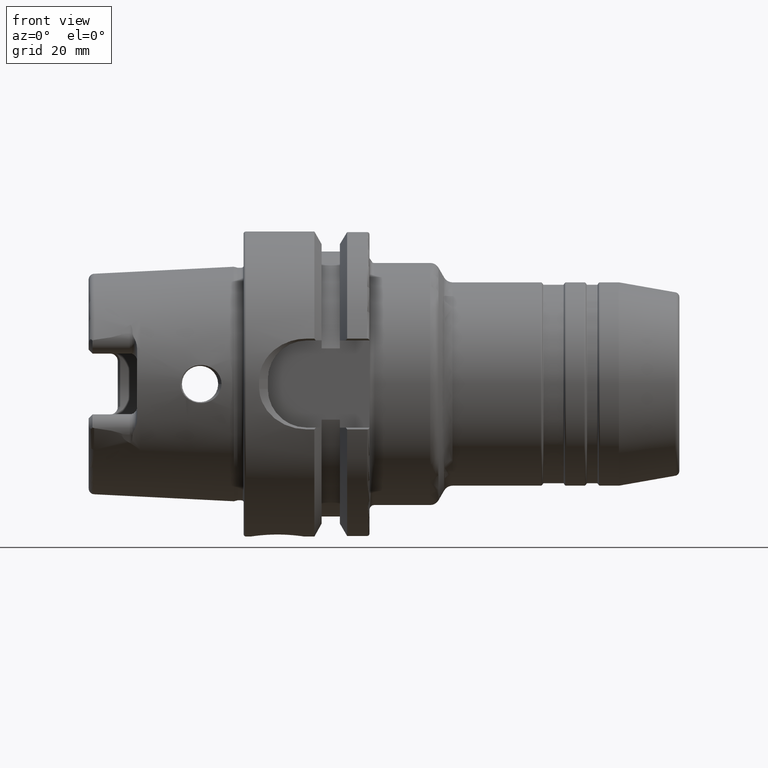
[diagram: clean part render]
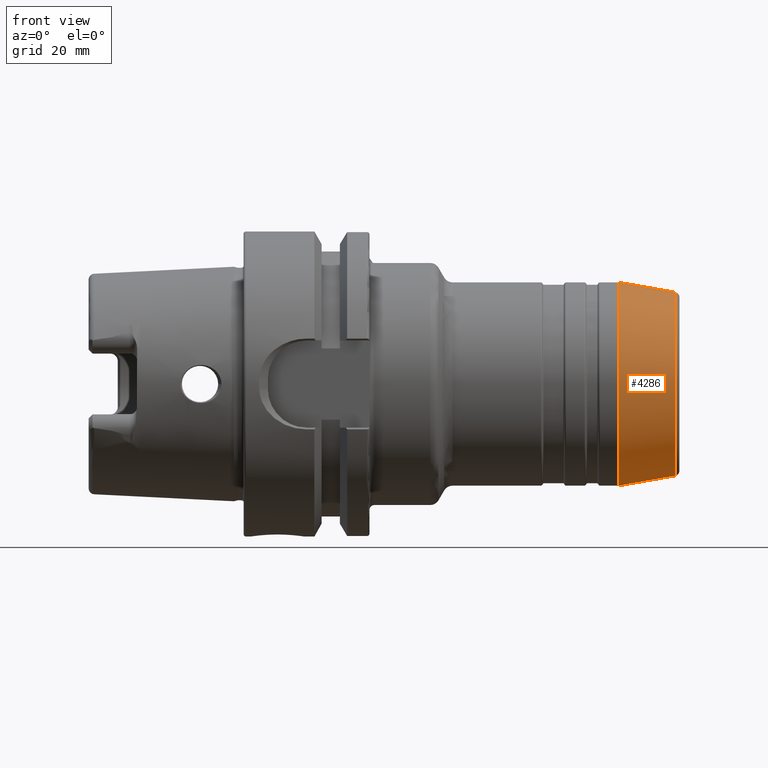
[diagram: same view with one face highlighted and labeled with its STEP entity id]
A machine part, front view. The second image highlights one B-rep face of the part: STEP entity #4286.
In plain terms, the highlighted conical surface has half-angle 10 deg.
Its self-contained STEP definition (entity closure, byte-faithful):
#608=DIRECTION('',(-9.848077530122E-1,0.E0,-1.736481776669E-1));
#609=VECTOR('',#608,1.183019543174E1);
#610=CARTESIAN_POINT('',(8.917364817766E1,0.E0,-1.894570812183E1));
#611=LINE('',#610,#609);
#612=DIRECTION('',(-9.848077530122E-1,0.E0,1.736481776669E-1));
#613=VECTOR('',#612,1.183019543174E1);
#614=CARTESIAN_POINT('',(8.917364817766E1,0.E0,1.894570812183E1));
#615=LINE('',#614,#613);
#616=CARTESIAN_POINT('',(8.917364817766E1,0.E0,0.E0));
#617=DIRECTION('',(-1.E0,0.E0,0.E0));
#618=DIRECTION('',(0.E0,0.E0,-1.E0));
#619=AXIS2_PLACEMENT_3D('',#616,#617,#618);
#629=CARTESIAN_POINT('',(7.752317999683E1,0.E0,0.E0));
#630=DIRECTION('',(-1.E0,0.E0,0.E0));
#631=DIRECTION('',(0.E0,0.E0,-1.E0));
#632=AXIS2_PLACEMENT_3D('',#629,#630,#631);
#3388=CARTESIAN_POINT('',(8.917364817766E1,0.E0,-1.894570812183E1));
#3390=VERTEX_POINT('',#3388);
#3391=CARTESIAN_POINT('',(7.752317999683E1,0.E0,-2.1E1));
#3392=VERTEX_POINT('',#3391);
#3448=CARTESIAN_POINT('',(8.917364817766E1,0.E0,1.894570812183E1));
#3450=VERTEX_POINT('',#3448);
#3451=CARTESIAN_POINT('',(7.752317999683E1,0.E0,2.1E1));
#3452=VERTEX_POINT('',#3451);
#4274=CARTESIAN_POINT('',(8.334841408725E1,0.E0,0.E0));
#4275=DIRECTION('',(-1.E0,0.E0,0.E0));
#4276=DIRECTION('',(0.E0,0.E0,-1.E0));
#4277=AXIS2_PLACEMENT_3D('',#4274,#4275,#4276);
#4278=CONICAL_SURFACE('',#4277,1.997285406092E1,9.999999999998E0);
#4279=ORIENTED_EDGE('',*,*,#4264,.T.);
#4281=ORIENTED_EDGE('',*,*,#4280,.T.);
#4282=ORIENTED_EDGE('',*,*,#4267,.F.);
#4283=ORIENTED_EDGE('',*,*,#4238,.F.);
#4284=EDGE_LOOP('',(#4279,#4281,#4282,#4283));
#4285=FACE_OUTER_BOUND('',#4284,.F.);
#4286=ADVANCED_FACE('',(#4285),#4278,.T.);
#620=CIRCLE('',#619,1.894570812183E1);
#633=CIRCLE('',#632,2.1E1);
#4238=EDGE_CURVE('',#3390,#3450,#620,.T.);
#4264=EDGE_CURVE('',#3390,#3392,#611,.T.);
#4267=EDGE_CURVE('',#3450,#3452,#615,.T.);
#4280=EDGE_CURVE('',#3392,#3452,#633,.T.);